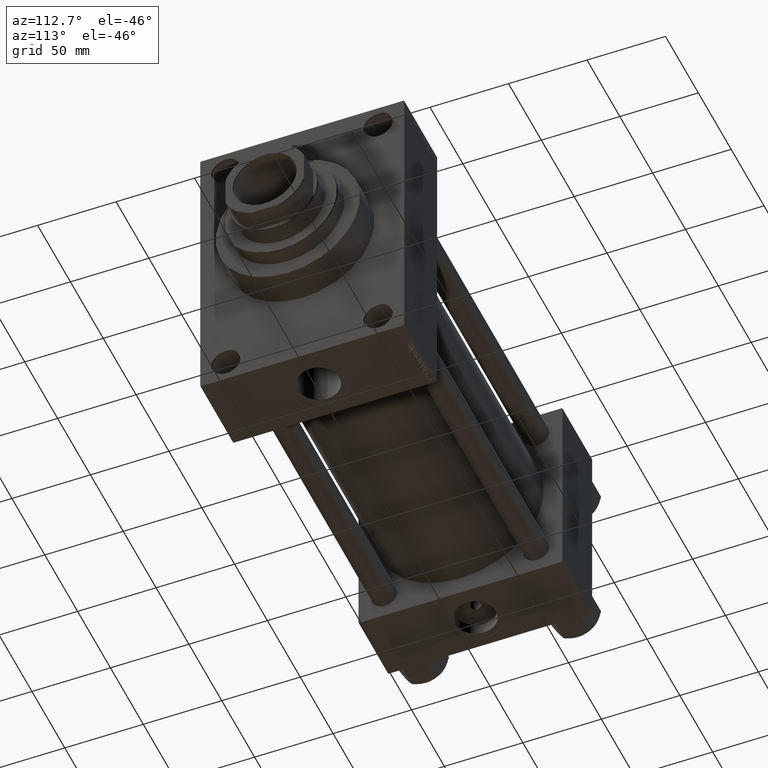
[diagram: clean part render]
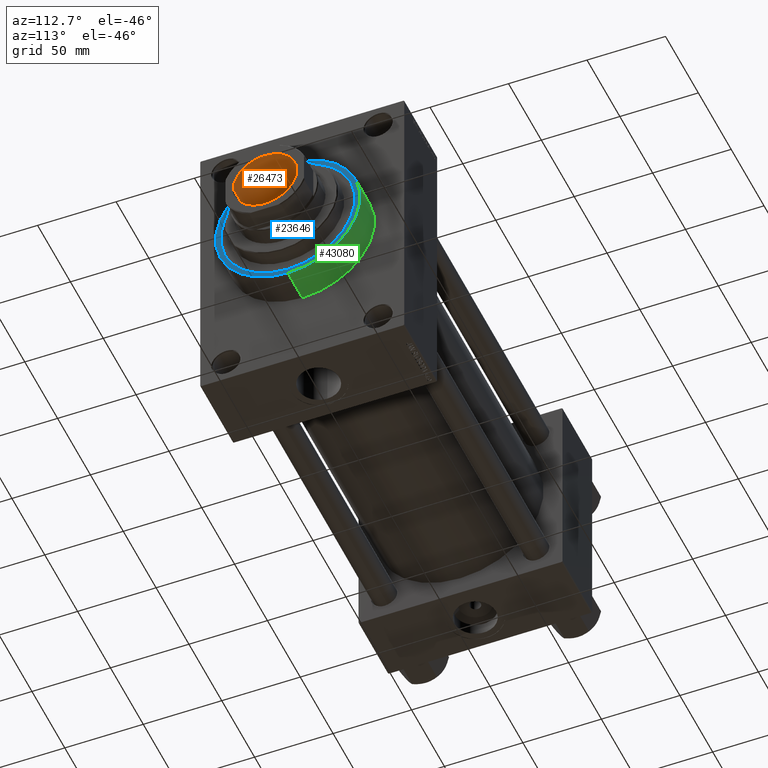
[diagram: same view with three faces highlighted in distinct colors, each labeled with its STEP entity id]
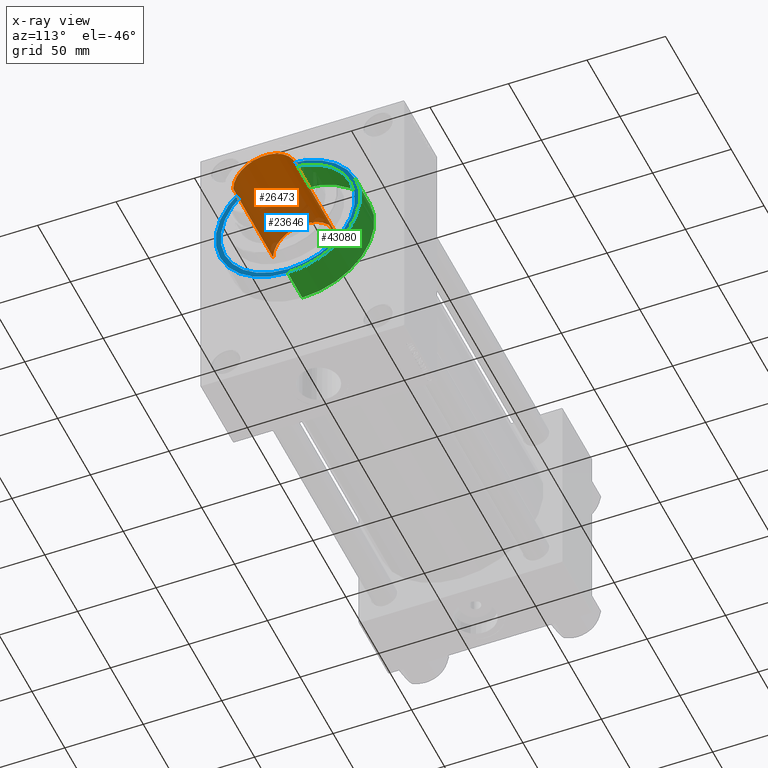
[diagram: x-ray of the same camera — body ghosted, the three highlighted faces saturated]
A machine part, auxiliary view with three faces highlighted in distinct colors.
The next image is the same camera in x-ray (body ghosted, the three faces saturated) — at least one of them is partly hidden behind the body in this view.
Their STEP definitions:

[orange] entity #26473 — the highlighted cylindrical surface (edge-blend (fillet) strip) has radius 20.25 mm, axis along (1, 0, 0).
#1801 = VERTEX_POINT ( 'NONE', #45713 ) ;
#1897 = DIRECTION ( 'NONE',  ( -0.000000000000000000, -0.000000000000000000, 1.000000000000000000 ) ) ;
#2506 = ORIENTED_EDGE ( 'NONE', *, *, #38988, .T. ) ;
#5871 = CIRCLE ( 'NONE', #33634, 20.24999999999999289 ) ;
#6165 = CARTESIAN_POINT ( 'NONE',  ( 0.000000000000000000, 0.000000000000000000, 237.0000000000000568 ) ) ;
#6252 = VERTEX_POINT ( 'NONE', #14682 ) ;
#6397 = DIRECTION ( 'NONE',  ( 1.000000000000000000, 0.000000000000000000, 0.000000000000000000 ) ) ;
#6418 = VERTEX_POINT ( 'NONE', #10512 ) ;
#8191 = CIRCLE ( 'NONE', #37473, 20.24999999999998934 ) ;
#9751 = VECTOR ( 'NONE', #27539, 1000.000000000000000 ) ;
#10089 = EDGE_CURVE ( 'NONE', #6418, #34392, #20490, .T. ) ;
#10512 = CARTESIAN_POINT ( 'NONE',  ( 20.24999999999998934, 0.000000000000000000, 237.0000000000000568 ) ) ;
#12586 = CARTESIAN_POINT ( 'NONE',  ( 20.24999999999999289, 0.000000000000000000, 297.7000000000000455 ) ) ;
#13890 = DIRECTION ( 'NONE',  ( 0.000000000000000000, 0.000000000000000000, 1.000000000000000000 ) ) ;
#14682 = CARTESIAN_POINT ( 'NONE',  ( -20.24999999999998934, 2.479909768273389117E-15, 237.0000000000000568 ) ) ;
#15635 = VECTOR ( 'NONE', #1897, 1000.000000000000000 ) ;
#17588 = AXIS2_PLACEMENT_3D ( 'NONE', #27239, #34489, #26784 ) ;
#20490 = LINE ( 'NONE', #38828, #15635 ) ;
#20891 = CARTESIAN_POINT ( 'NONE',  ( 0.000000000000000000, 0.000000000000000000, 297.7000000000000455 ) ) ;
#23001 = EDGE_CURVE ( 'NONE', #6252, #1801, #42737, .T. ) ;
#23922 = CARTESIAN_POINT ( 'NONE',  ( -20.24999999999999289, 2.479909768273389511E-15, 298.0000000000000568 ) ) ;
#26473 = ADVANCED_FACE ( 'NONE', ( #41722 ), #41957, .F. ) ;
#26784 = DIRECTION ( 'NONE',  ( 1.000000000000000000, 0.000000000000000000, 0.000000000000000000 ) ) ;
#27239 = CARTESIAN_POINT ( 'NONE',  ( 0.000000000000000000, 0.000000000000000000, 298.0000000000000568 ) ) ;
#27539 = DIRECTION ( 'NONE',  ( -0.000000000000000000, -0.000000000000000000, 1.000000000000000000 ) ) ;
#32235 = DIRECTION ( 'NONE',  ( -0.000000000000000000, -0.000000000000000000, 1.000000000000000000 ) ) ;
#32718 = DIRECTION ( 'NONE',  ( 1.000000000000000000, 0.000000000000000000, 0.000000000000000000 ) ) ;
#33537 = ORIENTED_EDGE ( 'NONE', *, *, #10089, .F. ) ;
#33634 = AXIS2_PLACEMENT_3D ( 'NONE', #20891, #13890, #6397 ) ;
#34048 = ORIENTED_EDGE ( 'NONE', *, *, #23001, .T. ) ;
#34392 = VERTEX_POINT ( 'NONE', #12586 ) ;
#34489 = DIRECTION ( 'NONE',  ( -0.000000000000000000, -0.000000000000000000, 1.000000000000000000 ) ) ;
#37473 = AXIS2_PLACEMENT_3D ( 'NONE', #6165, #32235, #32718 ) ;
#38828 = CARTESIAN_POINT ( 'NONE',  ( 20.24999999999999289, 0.000000000000000000, 298.0000000000000568 ) ) ;
#38988 = EDGE_CURVE ( 'NONE', #1801, #34392, #5871, .T. ) ;
#39070 = EDGE_CURVE ( 'NONE', #6252, #6418, #8191, .T. ) ;
#39616 = EDGE_LOOP ( 'NONE', ( #42347, #34048, #2506, #33537 ) ) ;
#41722 = FACE_OUTER_BOUND ( 'NONE', #39616, .T. ) ;
#41957 = CYLINDRICAL_SURFACE ( 'NONE', #17588, 20.24999999999999289 ) ;
#42347 = ORIENTED_EDGE ( 'NONE', *, *, #39070, .F. ) ;
#42737 = LINE ( 'NONE', #23922, #9751 ) ;
#45713 = CARTESIAN_POINT ( 'NONE',  ( -20.24999999999999289, 2.479909768273389511E-15, 297.7000000000000455 ) ) ;

[blue] entity #23646 — the highlighted planar face has unit normal (1, 0, 0).
#993 = CARTESIAN_POINT ( 'NONE',  ( 308.0000000000000000, 0.000000000000000000, -42.75000000000000000 ) ) ;
#1308 = DIRECTION ( 'NONE',  ( 0.000000000000000000, 0.000000000000000000, -1.000000000000000000 ) ) ;
#2309 = DIRECTION ( 'NONE',  ( 0.000000000000000000, 0.000000000000000000, -1.000000000000000000 ) ) ;
#2878 = CIRCLE ( 'NONE', #33738, 42.75000000000000000 ) ;
#2999 = EDGE_LOOP ( 'NONE', ( #46833, #44122 ) ) ;
#4681 = EDGE_LOOP ( 'NONE', ( #39010, #32326 ) ) ;
#5170 = CARTESIAN_POINT ( 'NONE',  ( 308.0000000000000000, 0.000000000000000000, 0.000000000000000000 ) ) ;
#5327 = CARTESIAN_POINT ( 'NONE',  ( 308.0000000000000000, 0.000000000000000000, 46.00000000000000000 ) ) ;
#5866 = AXIS2_PLACEMENT_3D ( 'NONE', #25160, #24188, #43490 ) ;
#6888 = VERTEX_POINT ( 'NONE', #5327 ) ;
#7145 = DIRECTION ( 'NONE',  ( 1.000000000000000000, 0.000000000000000000, 0.000000000000000000 ) ) ;
#7420 = EDGE_CURVE ( 'NONE', #47070, #6888, #21739, .T. ) ;
#8695 = DIRECTION ( 'NONE',  ( 1.000000000000000000, 0.000000000000000000, 0.000000000000000000 ) ) ;
#9374 = AXIS2_PLACEMENT_3D ( 'NONE', #46723, #7145, #2309 ) ;
#9996 = AXIS2_PLACEMENT_3D ( 'NONE', #43006, #47107, #13799 ) ;
#13799 = DIRECTION ( 'NONE',  ( 0.000000000000000000, 0.000000000000000000, -1.000000000000000000 ) ) ;
#19649 = PLANE ( 'NONE',  #30612 ) ;
#21739 = CIRCLE ( 'NONE', #9374, 46.00000000000000000 ) ;
#21806 = CARTESIAN_POINT ( 'NONE',  ( 308.0000000000000000, 5.235365066354935472E-15, 42.75000000000000000 ) ) ;
#23646 = ADVANCED_FACE ( 'NONE', ( #38212, #37980 ), #19649, .T. ) ;
#23900 = DIRECTION ( 'NONE',  ( 0.000000000000000000, 0.000000000000000000, -1.000000000000000000 ) ) ;
#24188 = DIRECTION ( 'NONE',  ( 1.000000000000000000, 0.000000000000000000, 0.000000000000000000 ) ) ;
#25160 = CARTESIAN_POINT ( 'NONE',  ( 308.0000000000000000, 0.000000000000000000, 0.000000000000000000 ) ) ;
#25381 = VERTEX_POINT ( 'NONE', #993 ) ;
#30612 = AXIS2_PLACEMENT_3D ( 'NONE', #5170, #34619, #1308 ) ;
#30677 = EDGE_CURVE ( 'NONE', #6888, #47070, #38501, .T. ) ;
#32326 = ORIENTED_EDGE ( 'NONE', *, *, #7420, .T. ) ;
#33738 = AXIS2_PLACEMENT_3D ( 'NONE', #42239, #8695, #23900 ) ;
#34619 = DIRECTION ( 'NONE',  ( 1.000000000000000000, 0.000000000000000000, 0.000000000000000000 ) ) ;
#35122 = CARTESIAN_POINT ( 'NONE',  ( 308.0000000000000000, 5.633375276077824704E-15, -46.00000000000000000 ) ) ;
#37980 = FACE_OUTER_BOUND ( 'NONE', #4681, .T. ) ;
#38212 = FACE_BOUND ( 'NONE', #2999, .T. ) ;
#38501 = CIRCLE ( 'NONE', #9996, 46.00000000000000000 ) ;
#39010 = ORIENTED_EDGE ( 'NONE', *, *, #30677, .T. ) ;
#39427 = VERTEX_POINT ( 'NONE', #21806 ) ;
#42239 = CARTESIAN_POINT ( 'NONE',  ( 308.0000000000000000, 0.000000000000000000, 0.000000000000000000 ) ) ;
#43006 = CARTESIAN_POINT ( 'NONE',  ( 308.0000000000000000, 0.000000000000000000, 0.000000000000000000 ) ) ;
#43490 = DIRECTION ( 'NONE',  ( 0.000000000000000000, 0.000000000000000000, -1.000000000000000000 ) ) ;
#43995 = EDGE_CURVE ( 'NONE', #25381, #39427, #45976, .T. ) ;
#44122 = ORIENTED_EDGE ( 'NONE', *, *, #45308, .F. ) ;
#45308 = EDGE_CURVE ( 'NONE', #39427, #25381, #2878, .T. ) ;
#45976 = CIRCLE ( 'NONE', #5866, 42.75000000000000000 ) ;
#46723 = CARTESIAN_POINT ( 'NONE',  ( 308.0000000000000000, 0.000000000000000000, 0.000000000000000000 ) ) ;
#46833 = ORIENTED_EDGE ( 'NONE', *, *, #43995, .F. ) ;
#47070 = VERTEX_POINT ( 'NONE', #35122 ) ;
#47107 = DIRECTION ( 'NONE',  ( 1.000000000000000000, 0.000000000000000000, 0.000000000000000000 ) ) ;

[green] entity #43080 — the highlighted cylindrical surface (partial cylindrical patch) has radius 46 mm, axis along (-1, -0, -0).
#400 = VECTOR ( 'NONE', #34126, 1000.000000000000000 ) ;
#2309 = DIRECTION ( 'NONE',  ( 0.000000000000000000, 0.000000000000000000, -1.000000000000000000 ) ) ;
#2986 = DIRECTION ( 'NONE',  ( 1.000000000000000000, 0.000000000000000000, 0.000000000000000000 ) ) ;
#5327 = CARTESIAN_POINT ( 'NONE',  ( 308.0000000000000000, 0.000000000000000000, 46.00000000000000000 ) ) ;
#6888 = VERTEX_POINT ( 'NONE', #5327 ) ;
#7145 = DIRECTION ( 'NONE',  ( 1.000000000000000000, 0.000000000000000000, 0.000000000000000000 ) ) ;
#7420 = EDGE_CURVE ( 'NONE', #47070, #6888, #21739, .T. ) ;
#9374 = AXIS2_PLACEMENT_3D ( 'NONE', #46723, #7145, #2309 ) ;
#9512 = EDGE_CURVE ( 'NONE', #28427, #23879, #33380, .T. ) ;
#12682 = FACE_OUTER_BOUND ( 'NONE', #16566, .T. ) ;
#14334 = DIRECTION ( 'NONE',  ( 0.000000000000000000, 0.000000000000000000, -1.000000000000000000 ) ) ;
#14842 = EDGE_CURVE ( 'NONE', #6888, #23879, #45687, .T. ) ;
#15175 = VECTOR ( 'NONE', #27848, 1000.000000000000000 ) ;
#16566 = EDGE_LOOP ( 'NONE', ( #40749, #44755, #47488, #32011 ) ) ;
#17897 = CARTESIAN_POINT ( 'NONE',  ( 286.0000000000000000, 5.633375276077824704E-15, -46.00000000000000000 ) ) ;
#19094 = AXIS2_PLACEMENT_3D ( 'NONE', #28132, #42613, #34428 ) ;
#19626 = CARTESIAN_POINT ( 'NONE',  ( 308.0000000000000000, 0.000000000000000000, 46.00000000000000000 ) ) ;
#21739 = CIRCLE ( 'NONE', #9374, 46.00000000000000000 ) ;
#23879 = VERTEX_POINT ( 'NONE', #46138 ) ;
#27848 = DIRECTION ( 'NONE',  ( -1.000000000000000000, -0.000000000000000000, -0.000000000000000000 ) ) ;
#28132 = CARTESIAN_POINT ( 'NONE',  ( 308.0000000000000000, 0.000000000000000000, 0.000000000000000000 ) ) ;
#28427 = VERTEX_POINT ( 'NONE', #17897 ) ;
#32011 = ORIENTED_EDGE ( 'NONE', *, *, #14842, .F. ) ;
#32199 = CARTESIAN_POINT ( 'NONE',  ( 286.0000000000000000, 0.000000000000000000, 0.000000000000000000 ) ) ;
#33380 = CIRCLE ( 'NONE', #39521, 46.00000000000000000 ) ;
#34126 = DIRECTION ( 'NONE',  ( -1.000000000000000000, -0.000000000000000000, -0.000000000000000000 ) ) ;
#34428 = DIRECTION ( 'NONE',  ( 0.000000000000000000, 0.000000000000000000, 1.000000000000000000 ) ) ;
#35122 = CARTESIAN_POINT ( 'NONE',  ( 308.0000000000000000, 5.633375276077824704E-15, -46.00000000000000000 ) ) ;
#38742 = CYLINDRICAL_SURFACE ( 'NONE', #19094, 46.00000000000000000 ) ;
#39521 = AXIS2_PLACEMENT_3D ( 'NONE', #32199, #2986, #14334 ) ;
#40149 = EDGE_CURVE ( 'NONE', #47070, #28427, #40972, .T. ) ;
#40749 = ORIENTED_EDGE ( 'NONE', *, *, #7420, .F. ) ;
#40972 = LINE ( 'NONE', #41678, #15175 ) ;
#41678 = CARTESIAN_POINT ( 'NONE',  ( 308.0000000000000000, 5.633375276077824704E-15, -46.00000000000000000 ) ) ;
#42613 = DIRECTION ( 'NONE',  ( -1.000000000000000000, -0.000000000000000000, -0.000000000000000000 ) ) ;
#43080 = ADVANCED_FACE ( 'NONE', ( #12682 ), #38742, .T. ) ;
#44755 = ORIENTED_EDGE ( 'NONE', *, *, #40149, .T. ) ;
#45687 = LINE ( 'NONE', #19626, #400 ) ;
#46138 = CARTESIAN_POINT ( 'NONE',  ( 286.0000000000000000, 0.000000000000000000, 46.00000000000000000 ) ) ;
#46723 = CARTESIAN_POINT ( 'NONE',  ( 308.0000000000000000, 0.000000000000000000, 0.000000000000000000 ) ) ;
#47070 = VERTEX_POINT ( 'NONE', #35122 ) ;
#47488 = ORIENTED_EDGE ( 'NONE', *, *, #9512, .T. ) ;